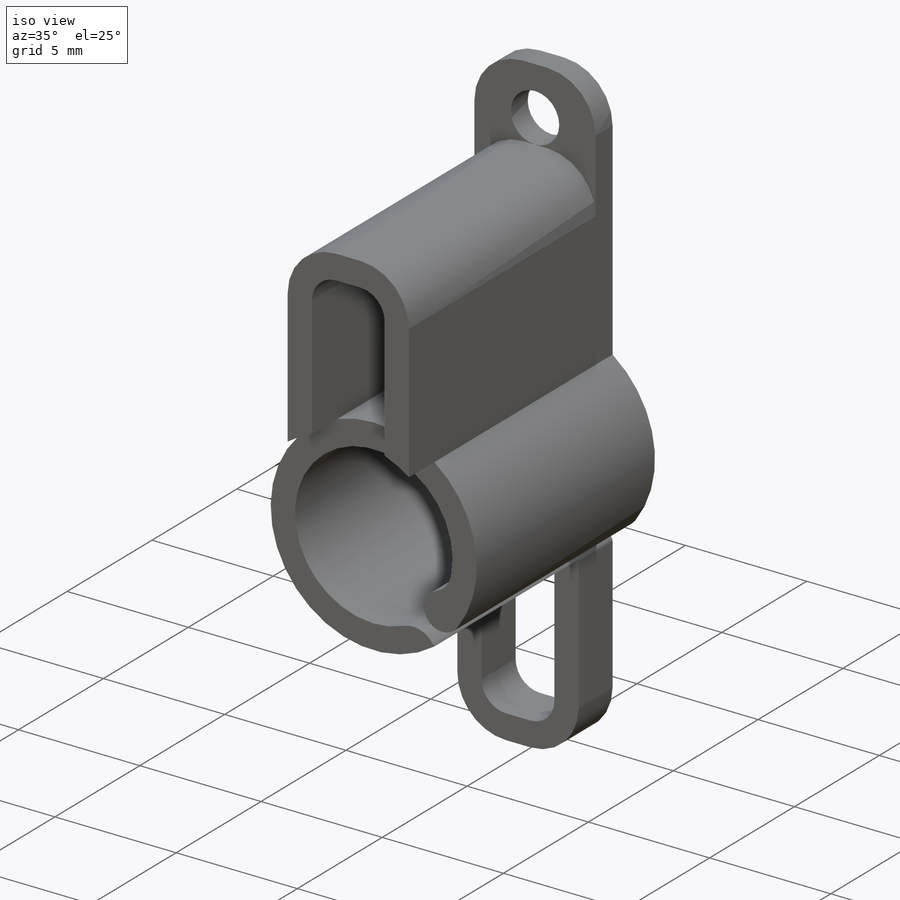
[diagram: iso view]
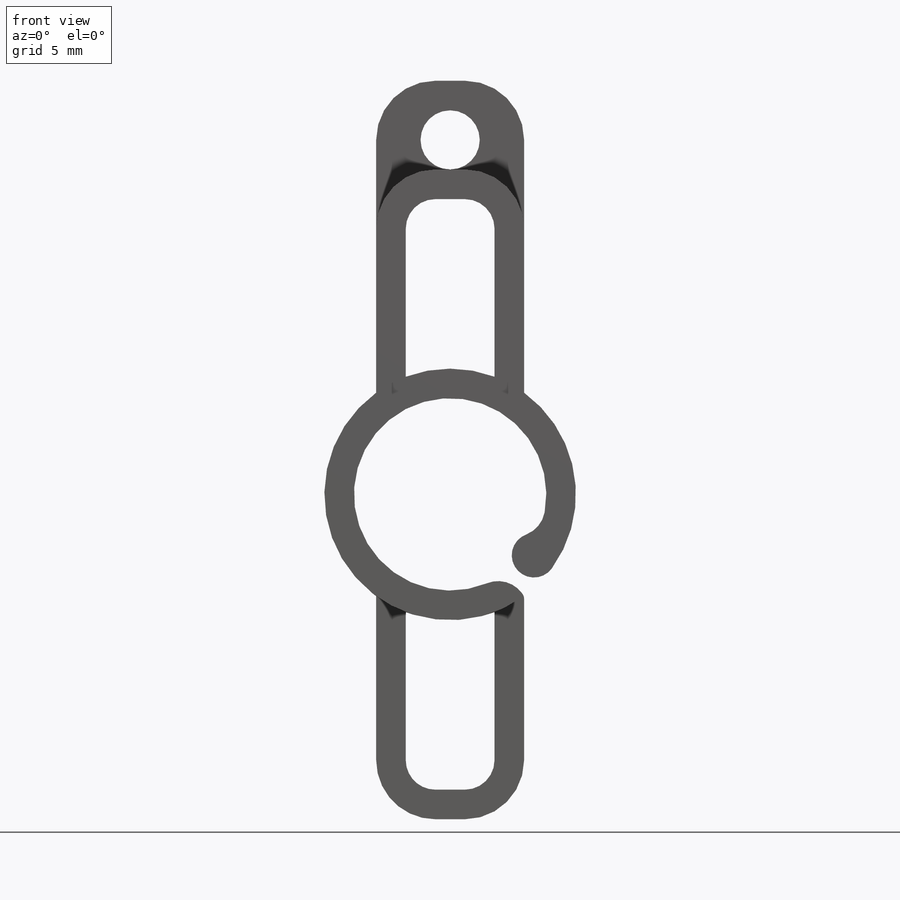
[diagram: front view]
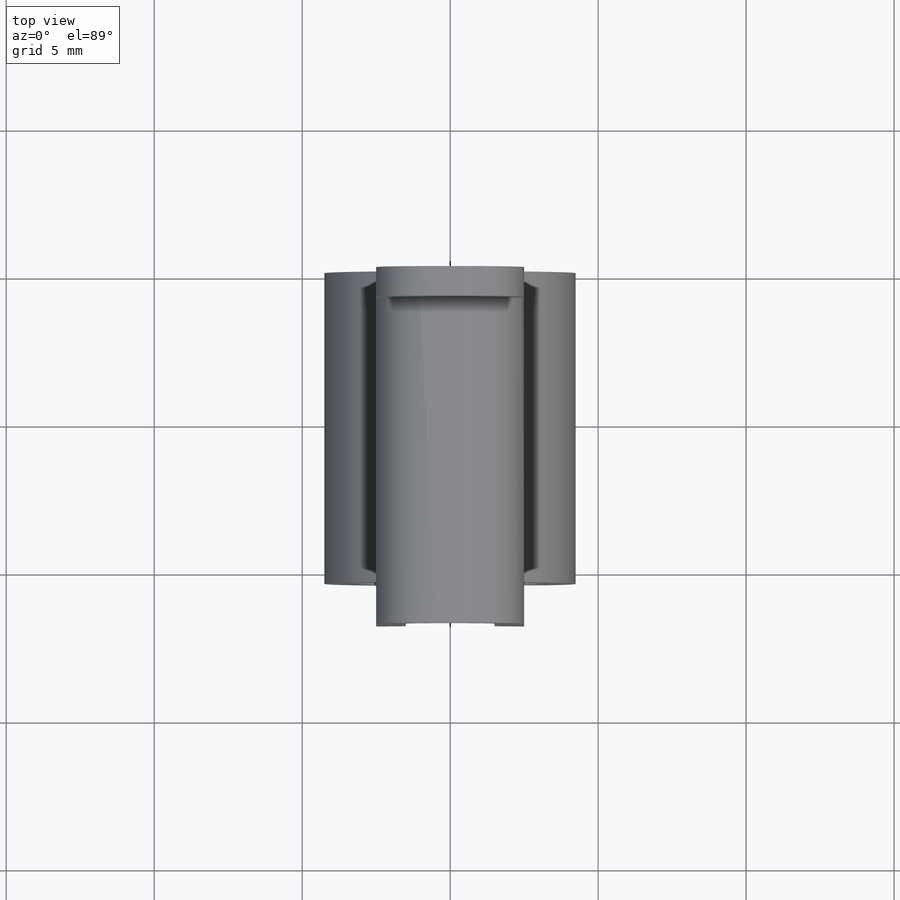
[diagram: top view]
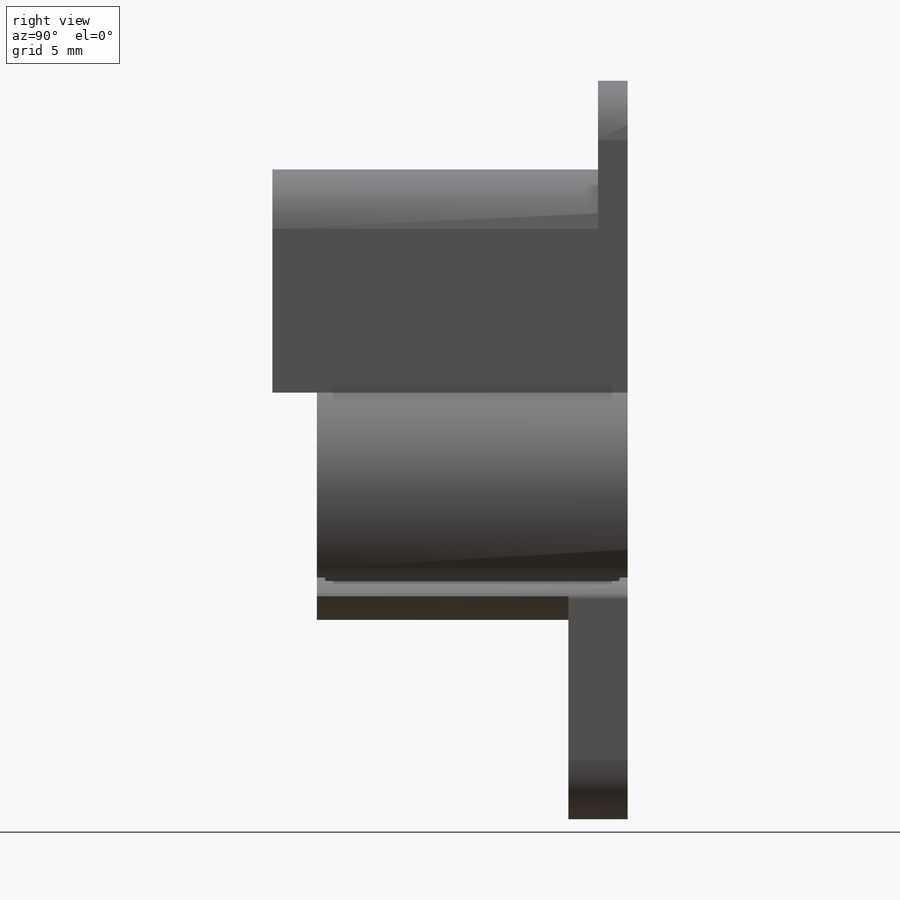
[diagram: right view]
SOLIDWORKS PART (.sldprt)
format: sldprt  version: not decoded by parser v0  size: 270,336 bytes
history: native  units: mm
features: sketch x5, plane x4, cut_extrude x3, extrude x2, material x1 (+9 scaffold rows collapsed)
feature tree (24):
  scaffold x9  (default folders/planes/origin — collapsed)
  material  "Malzeme <belirli değil>"
  plane  "Ön Düzlem"
  plane  "Üst Düzlem"
  plane  "Sağ Düzlem"
  sketch  "Çizim1"  dims[D1=1.0mm D2=1.0mm D3=1.5mm D4=1.0mm D5=0.3mm]
  extrude  "Yükseklik-Ekstrüzyon1"  Depth=12mm
  sketch  "Çizim2"
  cut_extrude  "Kes-Ekstrüzyon1"  Depth=10mm
  sketch  "Çizim3"  dims[D2=2.0mm D3=1.0mm D1=5.0mm]
  extrude  "Yükseklik-Ekstrüzyon7"  Depth=1mm
  sketch  "Çizim4"  dims[D1=2.0mm D2=1.0mm]
  cut_extrude  "Kes-Ekstrüzyon2"  Depth=11mm
  plane  "Düzlem1"  Offset=0mm
  sketch  "Çizim6"
  cut_extrude  "Kes-Ekstrüzyon3"  Depth=1.5mm
decode coverage: 8 of 10 modeling features carry decoded parameters
note: suppression state not decoded; provenance and decode notes live in map.json
